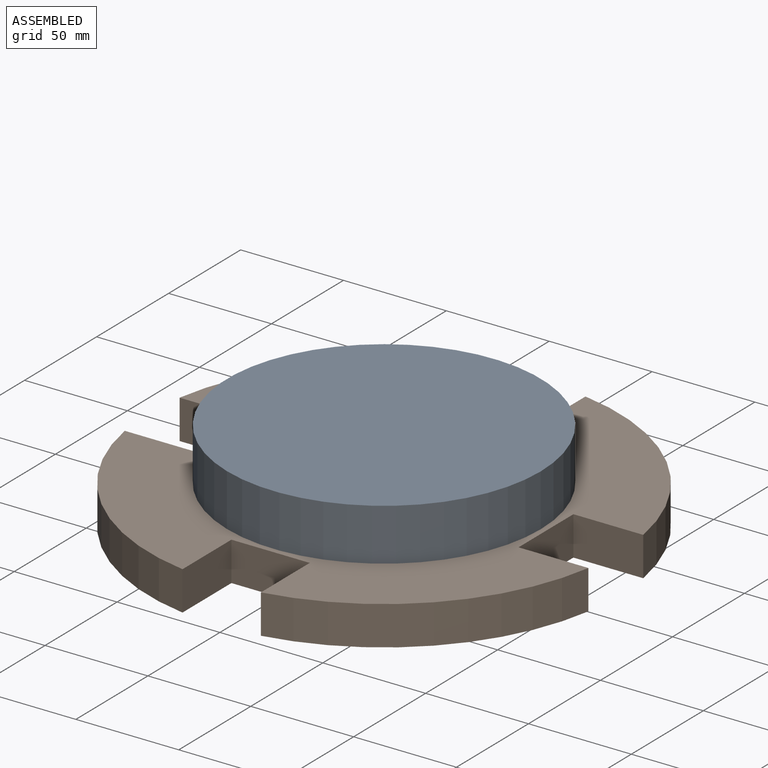
[diagram: assembled view]
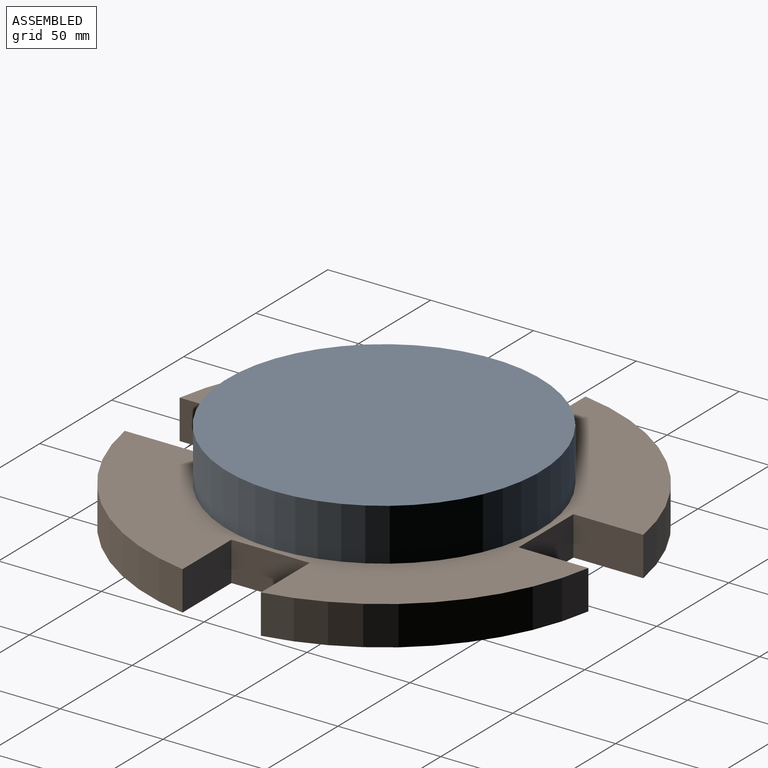
[diagram: assembled view, second angle]
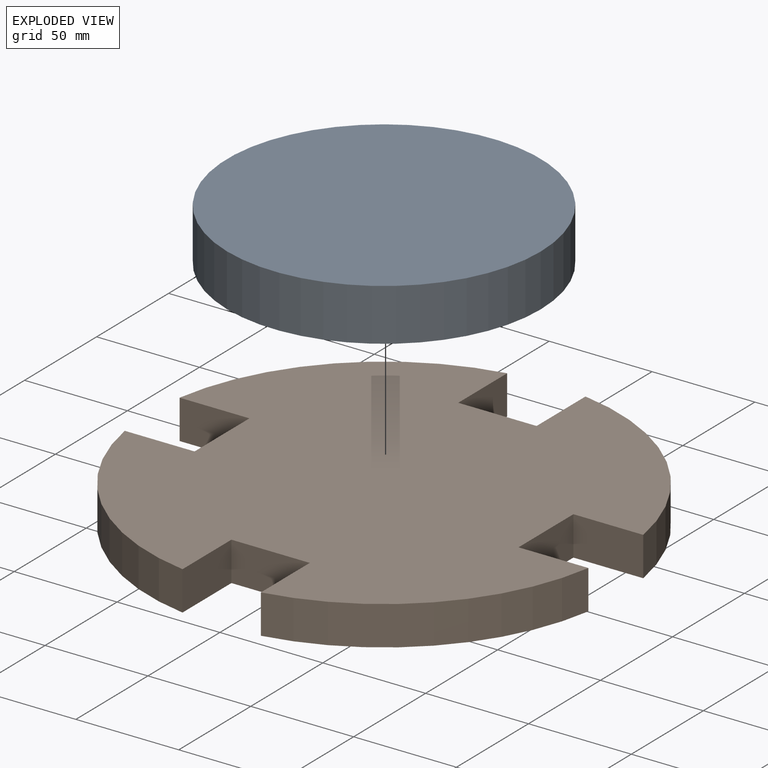
[diagram: exploded view]
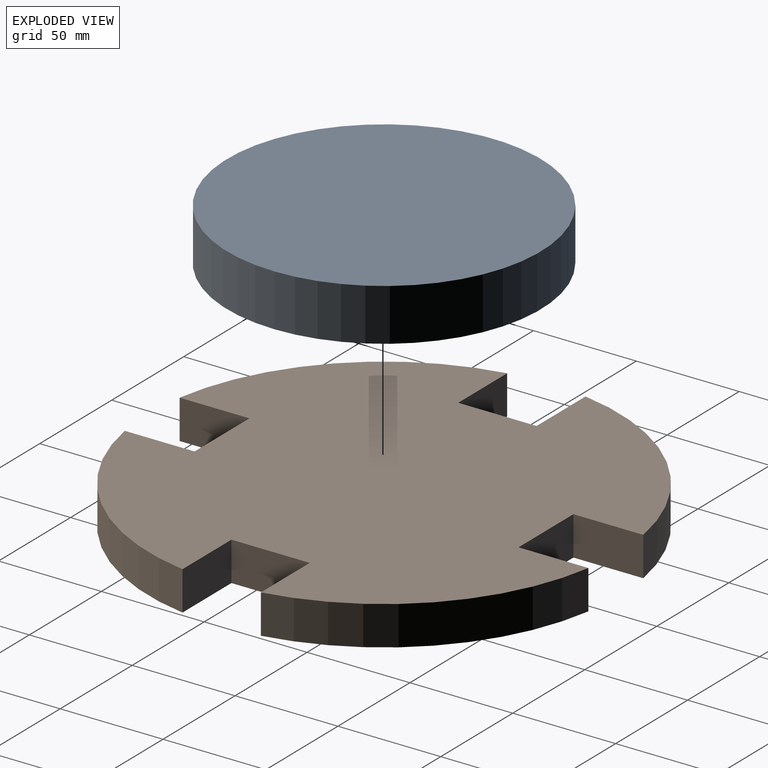
[diagram: exploded view, second angle]
ASSEMBLY  parts=2 mates=2
PART A: 3 faces, bbox 152.4x152.4x25.4 mm
  f0: cylinder r=76.2mm len=152.4mm, axis (0,0,-1), area 12161mm2, adj f1,f2
  f1: plane 152.4x152.4mm, normal (0,0,1), area 18241.5mm2, adj f0
  f2: plane 152.4x152.4mm, normal (0,0,-1), area 18241.5mm2, adj f0
PART B: 18 faces, bbox 225.4x225.4x19.1 mm
  f0: plane 33.96x19.05mm, normal (1,0,0), area 647mm2, adj f1,f15,f16,f17
  f1: cylinder r=114.3mm len=93.65mm, axis (0,0,-1), area 2691.1mm2, adj f0,f2,f16,f17
  f2: plane 33.96x19.05mm, normal (0,-1,0), area 647mm2, adj f1,f3,f16,f17
  f3: plane 38.1x19.05mm, normal (-1,0,0), area 725.8mm2, adj f2,f4,f16,f17
  f4: plane 33.96x19.05mm, normal (0,1,0), area 647mm2, adj f3,f5,f16,f17
  f5: cylinder r=114.3mm len=93.65mm, axis (0,0,-1), area 2691.1mm2, adj f4,f6,f16,f17
  f6: plane 33.96x19.05mm, normal (1,0,0), area 647mm2, adj f5,f7,f16,f17
  f7: plane 38.1x19.05mm, normal (0,-1,0), area 725.8mm2, adj f6,f8,f16,f17
  f8: plane 33.96x19.05mm, normal (-1,0,0), area 647mm2, adj f7,f9,f16,f17
  f9: cylinder r=114.3mm len=93.65mm, axis (0,0,-1), area 2691.1mm2, adj f8,f10,f16,f17
  f10: plane 33.96x19.05mm, normal (0,1,0), area 647mm2, adj f9,f11,f16,f17
  f11: plane 38.1x19.05mm, normal (1,0,0), area 725.8mm2, adj f10,f12,f16,f17
  f12: plane 33.96x19.05mm, normal (0,-1,0), area 647mm2, adj f11,f13,f16,f17
  f13: cylinder r=114.3mm len=93.65mm, axis (0,0,-1), area 2691.1mm2, adj f12,f14,f16,f17
  f14: plane 33.96x19.05mm, normal (-1,0,0), area 647mm2, adj f13,f15,f16,f17
  f15: plane 38.1x19.05mm, normal (0,1,0), area 725.8mm2, adj f0,f14,f16,f17
  f16: plane 225.4x225.4mm, normal (0,0,1), area 35704.9mm2, adj f0,f1,f2,f3,f4,f5,f6,f7
  f17: plane 225.4x225.4mm, normal (0,0,-1), area 35704.9mm2, adj f0,f1,f2,f3,f4,f5,f6,f7
PLACE A t=(-23.95,32.71,-12.56)mm
PLACE B t=(-28.14,32.71,-31.61)mm
MATE planar A.f0 <-> B.f13  axis (0,0,-1) through (-28.14,32.71,-12.56)mm
MATE cylindrical A.f0 <-> B.f9  axis (0,0,-1) through (-28.14,32.71,0.14)mm
